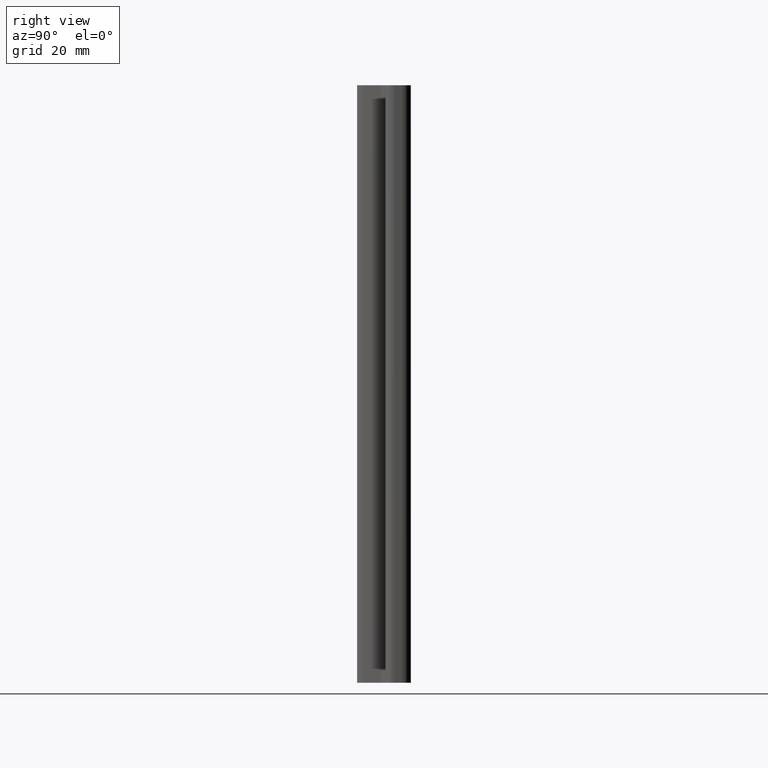
[diagram: clean part render]
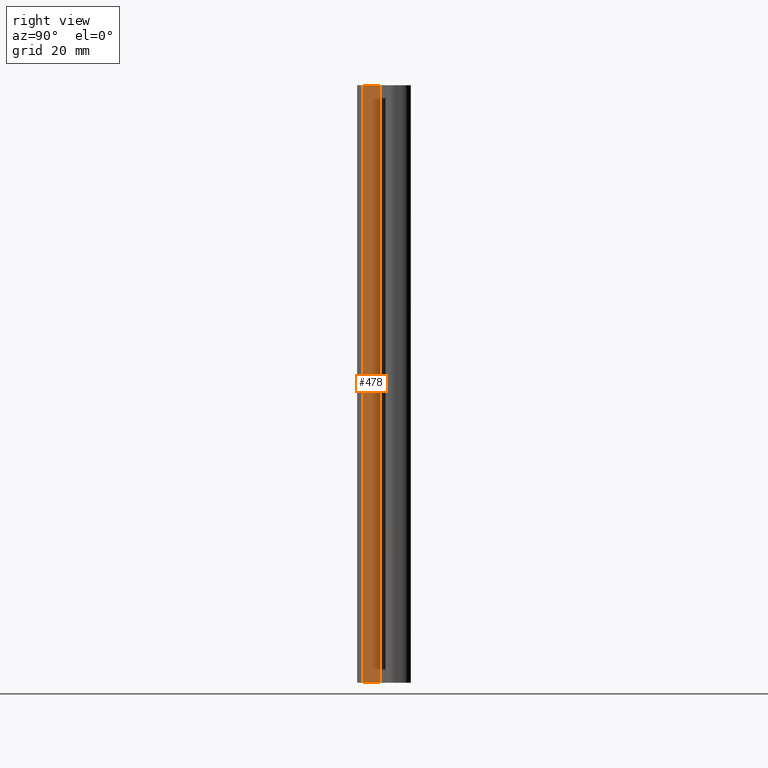
[diagram: same view with one face highlighted and labeled with its STEP entity id]
A machine part, right view. The second image highlights one B-rep face of the part: STEP entity #478.
In plain terms, the highlighted planar face has unit normal (0.9135, -0.4067, 0).
Its self-contained STEP definition (entity closure, byte-faithful):
#15=PLANE('',#520);
#30=FACE_OUTER_BOUND('',#56,.T.);
#56=EDGE_LOOP('',(#325,#326,#327,#328));
#82=LINE('',#726,#130);
#83=LINE('',#729,#131);
#84=LINE('',#731,#132);
#85=LINE('',#732,#133);
#130=VECTOR('',#576,10.);
#131=VECTOR('',#579,10.);
#132=VECTOR('',#580,10.);
#133=VECTOR('',#581,10.);
#202=VERTEX_POINT('',#720);
#204=VERTEX_POINT('',#724);
#205=VERTEX_POINT('',#728);
#206=VERTEX_POINT('',#730);
#252=EDGE_CURVE('',#202,#204,#82,.T.);
#253=EDGE_CURVE('',#205,#202,#83,.T.);
#254=EDGE_CURVE('',#206,#204,#84,.T.);
#255=EDGE_CURVE('',#205,#206,#85,.T.);
#325=ORIENTED_EDGE('',*,*,#253,.T.);
#326=ORIENTED_EDGE('',*,*,#252,.T.);
#327=ORIENTED_EDGE('',*,*,#254,.F.);
#328=ORIENTED_EDGE('',*,*,#255,.F.);
#478=ADVANCED_FACE('',(#30),#15,.T.);
#520=AXIS2_PLACEMENT_3D('',#727,#577,#578);
#576=DIRECTION('',(0.,0.,1.));
#577=DIRECTION('center_axis',(0.913545457642559,-0.406736643075895,0.));
#578=DIRECTION('ref_axis',(0.406736643075895,0.913545457642559,0.));
#579=DIRECTION('',(0.406736643075895,0.913545457642559,0.));
#580=DIRECTION('',(0.406736643075895,0.913545457642559,0.));
#581=DIRECTION('',(0.,0.,1.));
#720=CARTESIAN_POINT('',(45.2299459329063,7.72020992922788,0.));
#724=CARTESIAN_POINT('',(45.2299459329063,7.72020992922788,200.));
#726=CARTESIAN_POINT('',(45.2299459329063,7.72020992922788,0.));
#727=CARTESIAN_POINT('Origin',(42.5851006091448,1.77979007077273,0.));
#728=CARTESIAN_POINT('',(42.5851006091448,1.77979007077273,0.));
#729=CARTESIAN_POINT('',(42.5851006091448,1.77979007077272,0.));
#730=CARTESIAN_POINT('',(42.5851006091448,1.77979007077273,200.));
#731=CARTESIAN_POINT('',(42.5851006091448,1.77979007077272,200.));
#732=CARTESIAN_POINT('',(42.5851006091448,1.77979007077273,0.));